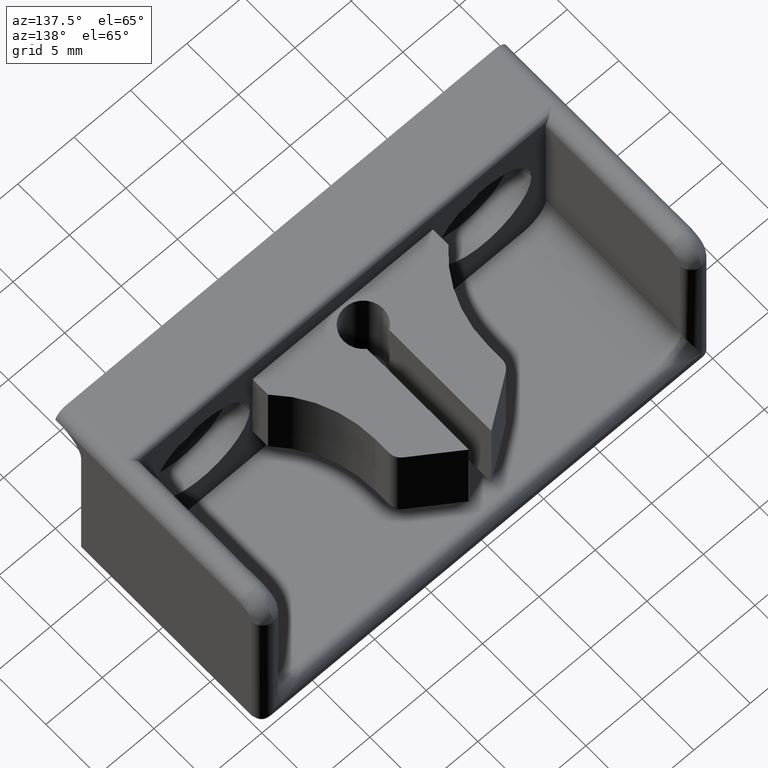
[diagram: clean part render]
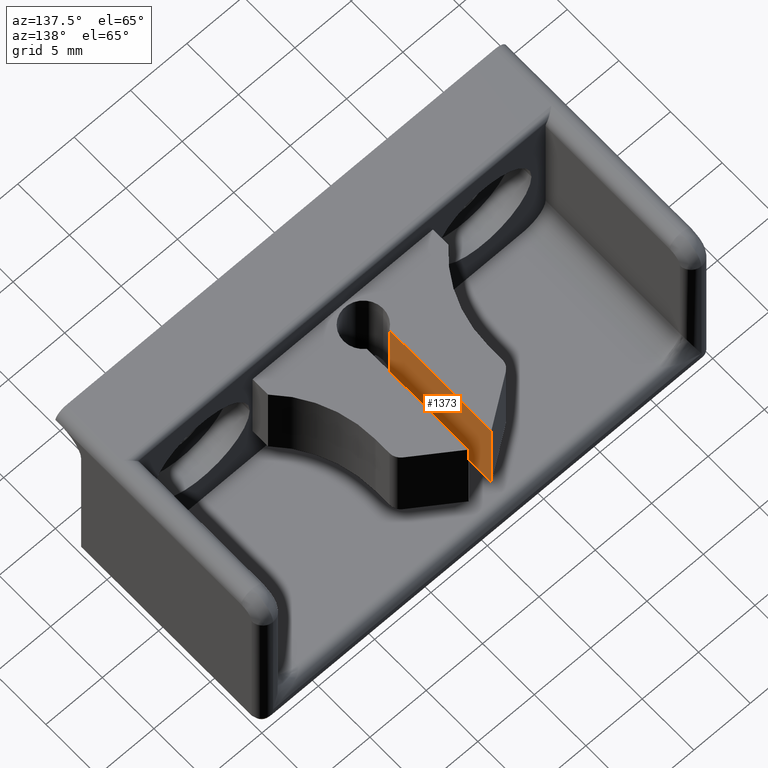
[diagram: same view with one face highlighted and labeled with its STEP entity id]
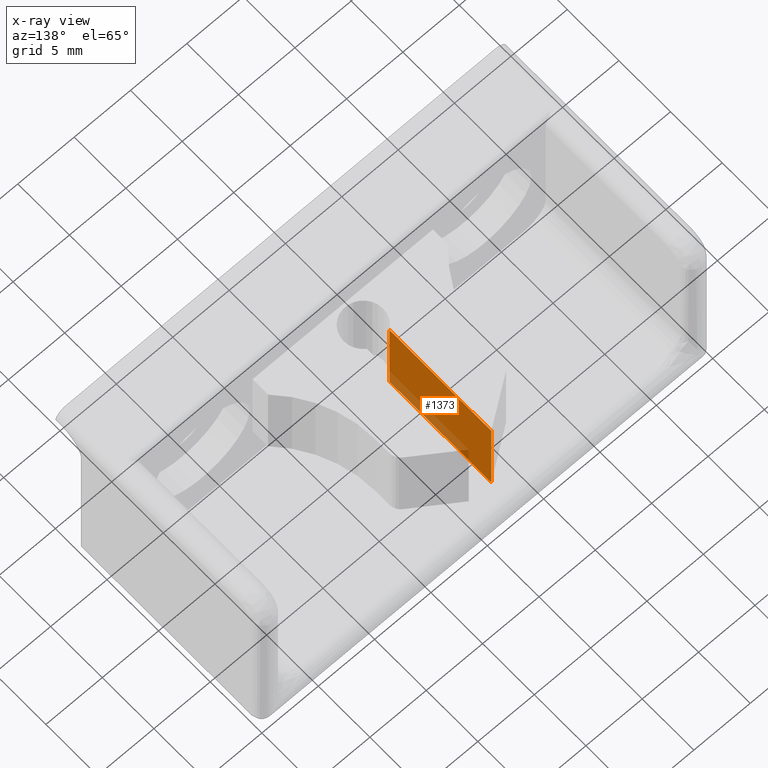
[diagram: x-ray of the same camera — body ghosted, the highlighted face saturated]
A machine part, auxiliary view. The second image highlights one B-rep face of the part: STEP entity #1373.
The next image is the same camera in x-ray: the body ghosted, the highlighted face saturated — about 16% of this face is hidden behind the body in this view.
In plain terms, the highlighted planar face has unit normal (-1, 0, 0).
Its self-contained STEP definition (entity closure, byte-faithful):
#397=CARTESIAN_POINT('',(-1.000000000000000,9.299999999999997,6.500000000000003));
#398=VERTEX_POINT('',#397);
#415=CARTESIAN_POINT('',(-1.000000000000000,9.299999999999997,14.500000000000000));
#416=VERTEX_POINT('',#415);
#423=CARTESIAN_POINT('',(-1.000000000000000,9.299999999999997,6.500000000000003));
#424=DIRECTION('',(0.0,0.0,1.0));
#425=VECTOR('',#424,7.999999999999997);
#426=LINE('',#423,#425);
#427=EDGE_CURVE('',#398,#416,#426,.T.);
#1235=CARTESIAN_POINT('',(-0.999999999999998,-0.563859338365486,14.500000000000000));
#1236=VERTEX_POINT('',#1235);
#1244=CARTESIAN_POINT('',(-1.000000000000000,9.299999999999997,14.500000000000000));
#1245=DIRECTION('',(0.0,-1.0,0.0));
#1246=VECTOR('',#1245,9.863859338365483);
#1247=LINE('',#1244,#1246);
#1248=EDGE_CURVE('',#416,#1236,#1247,.T.);
#1319=CARTESIAN_POINT('',(-0.999999999999998,-0.563859338365486,6.500000000000003));
#1320=VERTEX_POINT('',#1319);
#1321=CARTESIAN_POINT('',(-1.000000000000000,9.299999999999997,6.500000000000003));
#1322=DIRECTION('',(0.0,-1.0,0.0));
#1323=VECTOR('',#1322,9.863859338365483);
#1324=LINE('',#1321,#1323);
#1325=EDGE_CURVE('',#398,#1320,#1324,.T.);
#1352=CARTESIAN_POINT('',(-0.999999999999998,-0.563859338365486,6.500000000000003));
#1353=DIRECTION('',(0.0,0.0,1.0));
#1354=VECTOR('',#1353,7.999999999999997);
#1355=LINE('',#1352,#1354);
#1356=EDGE_CURVE('',#1320,#1236,#1355,.T.);
#1362=CARTESIAN_POINT('',(-1.000000000000000,9.793192966918271,6.100000000000003));
#1363=DIRECTION('',(-1.0,0.0,0.0));
#1364=DIRECTION('',(0.0,-1.0,0.0));
#1365=AXIS2_PLACEMENT_3D('',#1362,#1363,#1364);
#1366=PLANE('',#1365);
#1367=ORIENTED_EDGE('',*,*,#1248,.T.);
#1368=ORIENTED_EDGE('',*,*,#1356,.F.);
#1369=ORIENTED_EDGE('',*,*,#1325,.F.);
#1370=ORIENTED_EDGE('',*,*,#427,.T.);
#1371=EDGE_LOOP('',(#1367,#1368,#1369,#1370));
#1372=FACE_OUTER_BOUND('',#1371,.T.);
#1373=ADVANCED_FACE('',(#1372),#1366,.F.);